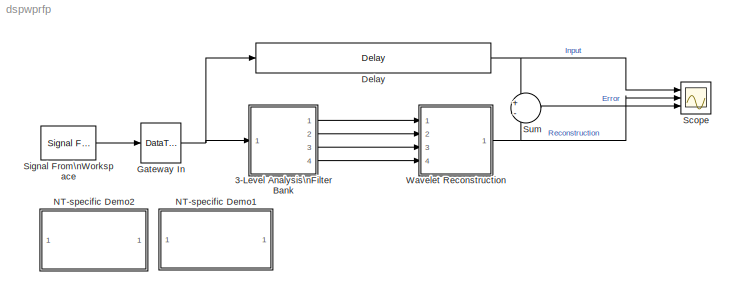
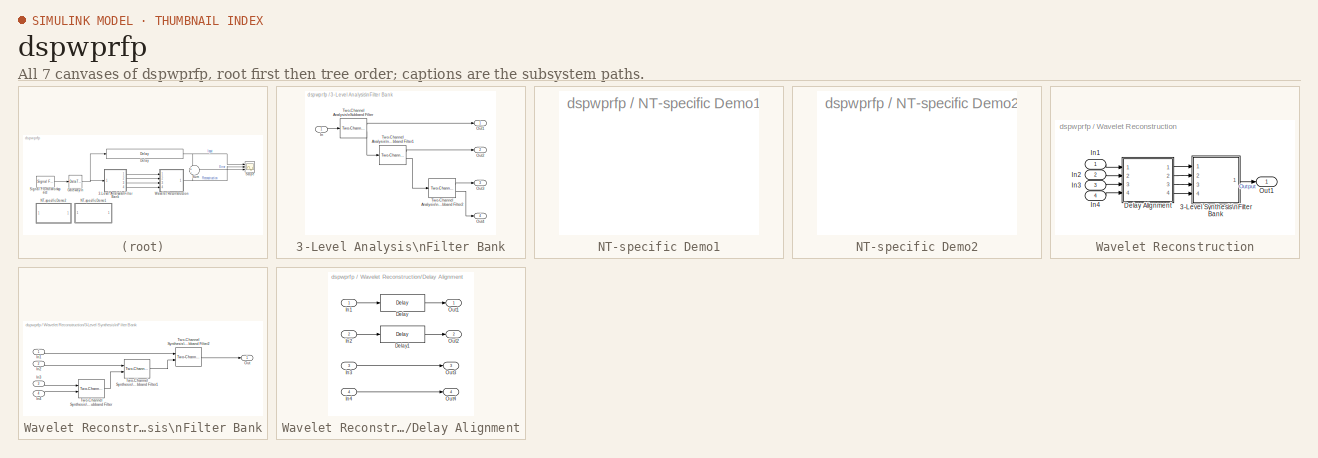
[diagram: thumbnail index - all 7 canvases of the model, root first then tree order]
MODEL dspwprfp
KIND model
CONFIG PreLoadFcn = load dspwlets;
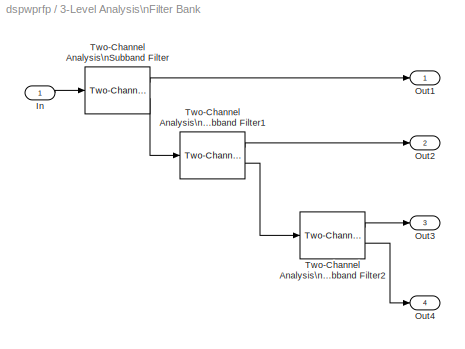
BLOCK [SubSystem] 3-Level Analysis\nFilter Bank
  MaskCallbackString = |
  MaskEnableString = on,on
  MaskIconFrame = on
  MaskIconOpaque = on
  MaskIconRotate = none
  MaskIconUnits = autoscale
  MaskPromptString = Lowpass FIR filter coefficients:|Highpass FIR filter coefficients:
  MaskStyleString = edit,edit
  MaskTabNameString = ,
  MaskToolTipString = on,on
  MaskTunableValueString = off,off
  MaskValueString = lod|hid
  MaskVarAliasString = ,
  MaskVariables = low=@1;high=@2;
  MaskVisibilityString = on,on
  Ports = [1, 4]
  TreatAsAtomicUnit = off
BLOCK [Inport] 3-Level Analysis\nFilter Bank/In
  IconDisplay = Port number
BLOCK [Outport] 3-Level Analysis\nFilter Bank/Out1
  BusOutputAsStruct = off
  IconDisplay = Port number
BLOCK [Outport] 3-Level Analysis\nFilter Bank/Out2
  BusOutputAsStruct = off
  IconDisplay = Port number
  Port = 2
BLOCK [Outport] 3-Level Analysis\nFilter Bank/Out3
  BusOutputAsStruct = off
  IconDisplay = Port number
  Port = 3
BLOCK [Outport] 3-Level Analysis\nFilter Bank/Out4
  BusOutputAsStruct = off
  IconDisplay = Port number
  Port = 4
BLOCK [Reference] 3-Level Analysis\nFilter Bank/Two-Channel Analysis\nSubband Filter  REF=dspmlti4/Two-Channel Analysis\nSubband Filter
  DialogController = dspDDGCreate
  DialogControllerArgs = DataTag0
  Ports = [1, 2]
  ShowPortLabels = on
  SourceBlock = dspmlti4/Two-Channel Analysis\nSubband Filter
  SourceType = Two-Channel Analysis Subband Filter
  accumFracLength = 25
  accumMode = Binary point scaling
  accumWordLength = 32
  additionalParams = off
  allowOverrides = off
  firstCoeffFracLength = 15
  firstCoeffMode = Same word length as input
  firstCoeffWordLength = 16
  framing = Maintain input frame size
  hpf = high
  lpf = low
  outputFracLength = 10
  outputMode = Same as input
  outputWordLength = 16
  overflowMode = on
  prodOutputFracLength = 25
  prodOutputMode = Inherit via internal rule
  prodOutputWordLength = 32
  roundingMode = Nearest
BLOCK [Reference] 3-Level Analysis\nFilter Bank/Two-Channel Analysis\nSubband Filter1  REF=dspmlti4/Two-Channel Analysis\nSubband Filter
  DialogController = dspDDGCreate
  DialogControllerArgs = DataTag1
  Ports = [1, 2]
  ShowPortLabels = on
  SourceBlock = dspmlti4/Two-Channel Analysis\nSubband Filter
  SourceType = Two-Channel Analysis Subband Filter
  accumFracLength = 25
  accumMode = Binary point scaling
  accumWordLength = 32
  additionalParams = off
  allowOverrides = off
  firstCoeffFracLength = 15
  firstCoeffMode = Same word length as input
  firstCoeffWordLength = 16
  framing = Maintain input frame size
  hpf = high
  lpf = low
  outputFracLength = 10
  outputMode = Same as input
  outputWordLength = 16
  overflowMode = on
  prodOutputFracLength = 25
  prodOutputMode = Inherit via internal rule
  prodOutputWordLength = 32
  roundingMode = Nearest
BLOCK [Reference] 3-Level Analysis\nFilter Bank/Two-Channel Analysis\nSubband Filter2  REF=dspmlti4/Two-Channel Analysis\nSubband Filter
  DialogController = dspDDGCreate
  DialogControllerArgs = DataTag2
  Ports = [1, 2]
  ShowPortLabels = on
  SourceBlock = dspmlti4/Two-Channel Analysis\nSubband Filter
  SourceType = Two-Channel Analysis Subband Filter
  accumFracLength = 25
  accumMode = Binary point scaling
  accumWordLength = 32
  additionalParams = off
  allowOverrides = off
  firstCoeffFracLength = 15
  firstCoeffMode = Same word length as input
  firstCoeffWordLength = 16
  framing = Maintain input frame size
  hpf = high
  lpf = low
  outputFracLength = 10
  outputMode = Same as input
  outputWordLength = 16
  overflowMode = on
  prodOutputFracLength = 25
  prodOutputMode = Inherit via internal rule
  prodOutputWordLength = 32
  roundingMode = Nearest
BLOCK [Reference] Delay  REF=dspsigops/Delay
  Ports = [1, 1]
  SourceBlock = dspsigops/Delay
  SourceType = Delay
  delay = 7*(length(lod)-1)
  dif_ic_for_ch = off
  dif_ic_for_dly = off
  dly_unit = Samples
  ic = 0
  ic_detail = on
  reset_popup = None
BLOCK [DataTypeConversion] Gateway In
  OutDataTypeMode = Specify via dialog
  OutScaling = 2^-10
  RndMeth = Nearest
BLOCK [SubSystem] NT-specific Demo1
  MaskDisplay = disp('Frame-Based\\nDemo')
  MaskIconFrame = on
  MaskIconOpaque = on
  MaskIconRotate = none
  MaskIconUnits = autoscale
  MaskType = Frame-Based Demo
  OpenFcn = dspwprf
  Ports = []
  TreatAsAtomicUnit = off
BLOCK [SubSystem] NT-specific Demo2
  MaskDisplay = disp('Sample-Based\\nDemo')
  MaskIconFrame = on
  MaskIconOpaque = on
  MaskIconRotate = none
  MaskIconUnits = autoscale
  MaskType = Sample-Based Demo
  OpenFcn = dspwpr
  Ports = []
  TreatAsAtomicUnit = off
BLOCK [Scope] Scope
  DataFormat = StructureWithTime
  NumInputPorts = 3
  Ports = [3]
  TimeRange = 1200
  YMax = 10~10~0.01
  YMin = -10~-10~-0.01
  ZoomMode = xonly
BLOCK [Reference] Signal From\nWorkspace  REF=dspsrcs4/Signal From\nWorkspace
  OutputAfterFinalValue = Setting to zero
  Ports = [0, 1]
  ShowPortLabels = on
  SourceBlock = dspsrcs4/Signal From\nWorkspace
  SourceType = Signal From Workspace
  Ts = ts
  X = noisdopp
  nsamps = 1
BLOCK [Sum] Sum
  IconShape = round
  Inputs = +-
  Ports = [2, 1]
BLOCK [SubSystem] Wavelet Reconstruction
  Ports = [4, 1]
  TreatAsAtomicUnit = off
BLOCK [SubSystem] Wavelet Reconstruction/3-Level Synthesis\nFilter Bank
  MaskCallbackString = |
  MaskEnableString = on,on
  MaskIconFrame = on
  MaskIconOpaque = on
  MaskIconRotate = none
  MaskIconUnits = autoscale
  MaskPromptString = Lowpass FIR filter coefficients:|Highpass FIR filter coefficients:
  MaskStyleString = edit,edit
  MaskTabNameString = ,
  MaskToolTipString = on,on
  MaskTunableValueString = off,off
  MaskValueString = lor|hir
  MaskVarAliasString = ,
  MaskVariables = low=@1;high=@2;
  MaskVisibilityString = on,on
  Ports = [4, 1]
  TreatAsAtomicUnit = off
BLOCK [Inport] Wavelet Reconstruction/3-Level Synthesis\nFilter Bank/In1
  IconDisplay = Port number
BLOCK [Inport] Wavelet Reconstruction/3-Level Synthesis\nFilter Bank/In2
  IconDisplay = Port number
  Port = 2
BLOCK [Inport] Wavelet Reconstruction/3-Level Synthesis\nFilter Bank/In3
  IconDisplay = Port number
  Port = 3
BLOCK [Inport] Wavelet Reconstruction/3-Level Synthesis\nFilter Bank/In4
  IconDisplay = Port number
  Port = 4
BLOCK [Outport] Wavelet Reconstruction/3-Level Synthesis\nFilter Bank/Out
  BusOutputAsStruct = off
  IconDisplay = Port number
BLOCK [Reference] Wavelet Reconstruction/3-Level Synthesis\nFilter Bank/Two-Channel Synthesis\nSubband Filter  REF=dspmlti4/Two-Channel Synthesis\nSubband Filter
  DialogController = dspDDGCreate
  DialogControllerArgs = DataTag3
  Ports = [2, 1]
  ShowPortLabels = on
  SourceBlock = dspmlti4/Two-Channel Synthesis\nSubband Filter
  SourceType = Two-Channel Synthesis Subband Filter
  accumFracLength = 25
  accumMode = Binary point scaling
  accumWordLength = 32
  additionalParams = off
  allowOverrides = off
  firstCoeffFracLength = 15
  firstCoeffMode = Same word length as input
  firstCoeffWordLength = 16
  framing = Maintain input frame size
  hpf = high
  lpf = low
  outputFracLength = 14
  outputMode = Same as input
  outputWordLength = 16
  overflowMode = on
  prodOutputFracLength = 25
  prodOutputMode = Inherit via internal rule
  prodOutputWordLength = 32
  roundingMode = Nearest
BLOCK [Reference] Wavelet Reconstruction/3-Level Synthesis\nFilter Bank/Two-Channel Synthesis\nSubband Filter1  REF=dspmlti4/Two-Channel Synthesis\nSubband Filter
  DialogController = dspDDGCreate
  DialogControllerArgs = DataTag4
  Ports = [2, 1]
  ShowPortLabels = on
  SourceBlock = dspmlti4/Two-Channel Synthesis\nSubband Filter
  SourceType = Two-Channel Synthesis Subband Filter
  accumFracLength = 25
  accumMode = Binary point scaling
  accumWordLength = 32
  additionalParams = off
  allowOverrides = off
  firstCoeffFracLength = 15
  firstCoeffMode = Same word length as input
  firstCoeffWordLength = 16
  framing = Maintain input frame size
  hpf = high
  lpf = low
  outputFracLength = 14
  outputMode = Same as input
  outputWordLength = 16
  overflowMode = on
  prodOutputFracLength = 25
  prodOutputMode = Inherit via internal rule
  prodOutputWordLength = 32
  roundingMode = Nearest
BLOCK [Reference] Wavelet Reconstruction/3-Level Synthesis\nFilter Bank/Two-Channel Synthesis\nSubband Filter2  REF=dspmlti4/Two-Channel Synthesis\nSubband Filter
  DialogController = dspDDGCreate
  DialogControllerArgs = DataTag5
  Ports = [2, 1]
  ShowPortLabels = on
  SourceBlock = dspmlti4/Two-Channel Synthesis\nSubband Filter
  SourceType = Two-Channel Synthesis Subband Filter
  accumFracLength = 25
  accumMode = Binary point scaling
  accumWordLength = 32
  additionalParams = off
  allowOverrides = off
  firstCoeffFracLength = 15
  firstCoeffMode = Same word length as input
  firstCoeffWordLength = 16
  framing = Maintain input frame size
  hpf = high
  lpf = low
  outputFracLength = 14
  outputMode = Same as input
  outputWordLength = 16
  overflowMode = on
  prodOutputFracLength = 25
  prodOutputMode = Inherit via internal rule
  prodOutputWordLength = 32
  roundingMode = Nearest
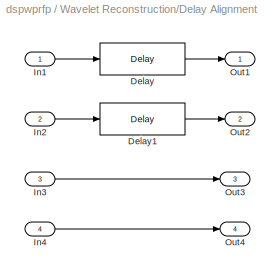
BLOCK [SubSystem] Wavelet Reconstruction/Delay Alignment
  Ports = [4, 4]
  TreatAsAtomicUnit = off
BLOCK [Reference] Wavelet Reconstruction/Delay Alignment/Delay  REF=dspsigops/Delay
  Ports = [1, 1]
  SourceBlock = dspsigops/Delay
  SourceType = Delay
  delay = 3*(length(lod)-1)
  dif_ic_for_ch = off
  dif_ic_for_dly = off
  dly_unit = Samples
  ic = 0
  ic_detail = off
  reset_popup = None
BLOCK [Reference] Wavelet Reconstruction/Delay Alignment/Delay1  REF=dspsigops/Delay
  Ports = [1, 1]
  SourceBlock = dspsigops/Delay
  SourceType = Delay
  delay = length(lod) - 1
  dif_ic_for_ch = off
  dif_ic_for_dly = off
  dly_unit = Samples
  ic = 0
  ic_detail = off
  reset_popup = None
BLOCK [Inport] Wavelet Reconstruction/Delay Alignment/In1
  IconDisplay = Port number
BLOCK [Inport] Wavelet Reconstruction/Delay Alignment/In2
  IconDisplay = Port number
  Port = 2
BLOCK [Inport] Wavelet Reconstruction/Delay Alignment/In3
  IconDisplay = Port number
  Port = 3
BLOCK [Inport] Wavelet Reconstruction/Delay Alignment/In4
  IconDisplay = Port number
  Port = 4
BLOCK [Outport] Wavelet Reconstruction/Delay Alignment/Out1
  BusOutputAsStruct = off
  IconDisplay = Port number
BLOCK [Outport] Wavelet Reconstruction/Delay Alignment/Out2
  BusOutputAsStruct = off
  IconDisplay = Port number
  Port = 2
BLOCK [Outport] Wavelet Reconstruction/Delay Alignment/Out3
  BusOutputAsStruct = off
  IconDisplay = Port number
  Port = 3
BLOCK [Outport] Wavelet Reconstruction/Delay Alignment/Out4
  BusOutputAsStruct = off
  IconDisplay = Port number
  Port = 4
BLOCK [Inport] Wavelet Reconstruction/In1
  IconDisplay = Port number
BLOCK [Inport] Wavelet Reconstruction/In2
  IconDisplay = Port number
  Port = 2
BLOCK [Inport] Wavelet Reconstruction/In3
  IconDisplay = Port number
  Port = 3
BLOCK [Inport] Wavelet Reconstruction/In4
  IconDisplay = Port number
  Port = 4
BLOCK [Outport] Wavelet Reconstruction/Out1
  BusOutputAsStruct = off
  IconDisplay = Port number
LINE 3-Level Analysis\nFilter Bank/In:1 -> 3-Level Analysis\nFilter Bank/Two-Channel Analysis\nSubband Filter:1
LINE 3-Level Analysis\nFilter Bank/Two-Channel Analysis\nSubband Filter1:1 -> 3-Level Analysis\nFilter Bank/Out2:1
LINE 3-Level Analysis\nFilter Bank/Two-Channel Analysis\nSubband Filter1:2 -> 3-Level Analysis\nFilter Bank/Two-Channel Analysis\nSubband Filter2:1
LINE 3-Level Analysis\nFilter Bank/Two-Channel Analysis\nSubband Filter2:1 -> 3-Level Analysis\nFilter Bank/Out3:1
LINE 3-Level Analysis\nFilter Bank/Two-Channel Analysis\nSubband Filter2:2 -> 3-Level Analysis\nFilter Bank/Out4:1
LINE 3-Level Analysis\nFilter Bank/Two-Channel Analysis\nSubband Filter:1 -> 3-Level Analysis\nFilter Bank/Out1:1
LINE 3-Level Analysis\nFilter Bank/Two-Channel Analysis\nSubband Filter:2 -> 3-Level Analysis\nFilter Bank/Two-Channel Analysis\nSubband Filter1:1
LINE 3-Level Analysis\nFilter Bank:1 -> Wavelet Reconstruction:1
LINE 3-Level Analysis\nFilter Bank:2 -> Wavelet Reconstruction:2
LINE 3-Level Analysis\nFilter Bank:3 -> Wavelet Reconstruction:3
LINE 3-Level Analysis\nFilter Bank:4 -> Wavelet Reconstruction:4
NET Delay:1 -> Scope:1, Sum:1
NET Gateway In:1 -> 3-Level Analysis\nFilter Bank:1, Delay:1
LINE Signal From\nWorkspace:1 -> Gateway In:1
LINE Sum:1 -> Scope:3
LINE Wavelet Reconstruction/3-Level Synthesis\nFilter Bank/In1:1 -> Wavelet Reconstruction/3-Level Synthesis\nFilter Bank/Two-Channel Synthesis\nSubband Filter2:1
LINE Wavelet Reconstruction/3-Level Synthesis\nFilter Bank/In2:1 -> Wavelet Reconstruction/3-Level Synthesis\nFilter Bank/Two-Channel Synthesis\nSubband Filter1:1
LINE Wavelet Reconstruction/3-Level Synthesis\nFilter Bank/In3:1 -> Wavelet Reconstruction/3-Level Synthesis\nFilter Bank/Two-Channel Synthesis\nSubband Filter:1
LINE Wavelet Reconstruction/3-Level Synthesis\nFilter Bank/In4:1 -> Wavelet Reconstruction/3-Level Synthesis\nFilter Bank/Two-Channel Synthesis\nSubband Filter:2
LINE Wavelet Reconstruction/3-Level Synthesis\nFilter Bank/Two-Channel Synthesis\nSubband Filter1:1 -> Wavelet Reconstruction/3-Level Synthesis\nFilter Bank/Two-Channel Synthesis\nSubband Filter2:2
LINE Wavelet Reconstruction/3-Level Synthesis\nFilter Bank/Two-Channel Synthesis\nSubband Filter2:1 -> Wavelet Reconstruction/3-Level Synthesis\nFilter Bank/Out:1
LINE Wavelet Reconstruction/3-Level Synthesis\nFilter Bank/Two-Channel Synthesis\nSubband Filter:1 -> Wavelet Reconstruction/3-Level Synthesis\nFilter Bank/Two-Channel Synthesis\nSubband Filter1:2
LINE Wavelet Reconstruction/3-Level Synthesis\nFilter Bank:1 -> Wavelet Reconstruction/Out1:1
LINE Wavelet Reconstruction/Delay Alignment/Delay1:1 -> Wavelet Reconstruction/Delay Alignment/Out2:1
LINE Wavelet Reconstruction/Delay Alignment/Delay:1 -> Wavelet Reconstruction/Delay Alignment/Out1:1
LINE Wavelet Reconstruction/Delay Alignment/In1:1 -> Wavelet Reconstruction/Delay Alignment/Delay:1
LINE Wavelet Reconstruction/Delay Alignment/In2:1 -> Wavelet Reconstruction/Delay Alignment/Delay1:1
LINE Wavelet Reconstruction/Delay Alignment/In3:1 -> Wavelet Reconstruction/Delay Alignment/Out3:1
LINE Wavelet Reconstruction/Delay Alignment/In4:1 -> Wavelet Reconstruction/Delay Alignment/Out4:1
LINE Wavelet Reconstruction/Delay Alignment:1 -> Wavelet Reconstruction/3-Level Synthesis\nFilter Bank:1
LINE Wavelet Reconstruction/Delay Alignment:2 -> Wavelet Reconstruction/3-Level Synthesis\nFilter Bank:2
LINE Wavelet Reconstruction/Delay Alignment:3 -> Wavelet Reconstruction/3-Level Synthesis\nFilter Bank:3
LINE Wavelet Reconstruction/Delay Alignment:4 -> Wavelet Reconstruction/3-Level Synthesis\nFilter Bank:4
LINE Wavelet Reconstruction/In1:1 -> Wavelet Reconstruction/Delay Alignment:1
LINE Wavelet Reconstruction/In2:1 -> Wavelet Reconstruction/Delay Alignment:2
LINE Wavelet Reconstruction/In3:1 -> Wavelet Reconstruction/Delay Alignment:3
LINE Wavelet Reconstruction/In4:1 -> Wavelet Reconstruction/Delay Alignment:4
NET Wavelet Reconstruction:1 -> Scope:2, Sum:2
note: NET lines group one-source signal fan-out (src -> all destinations, sorted); 1:1 wires keep LINE
